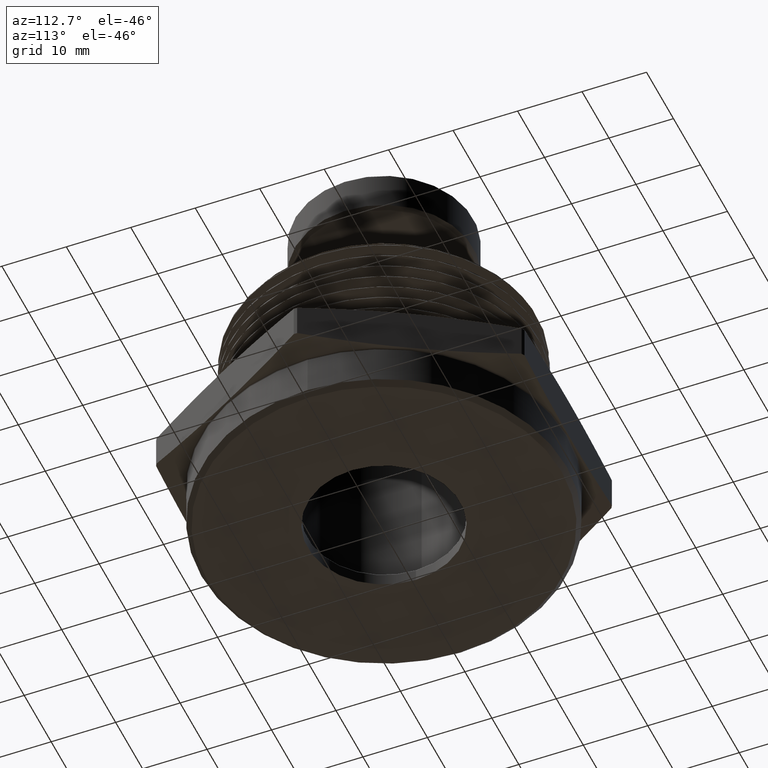
[diagram: clean part render]
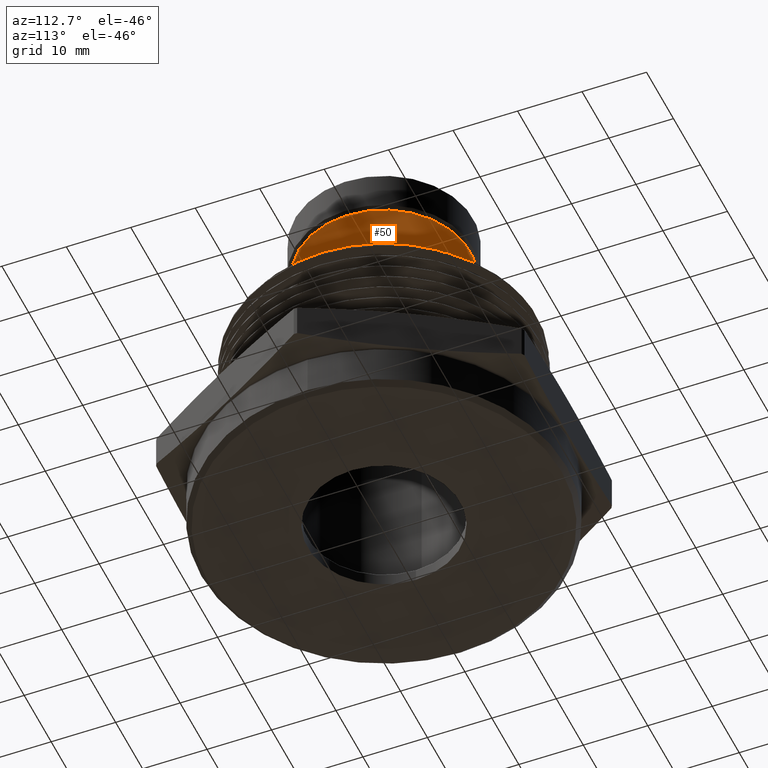
[diagram: same view with one face highlighted and labeled with its STEP entity id]
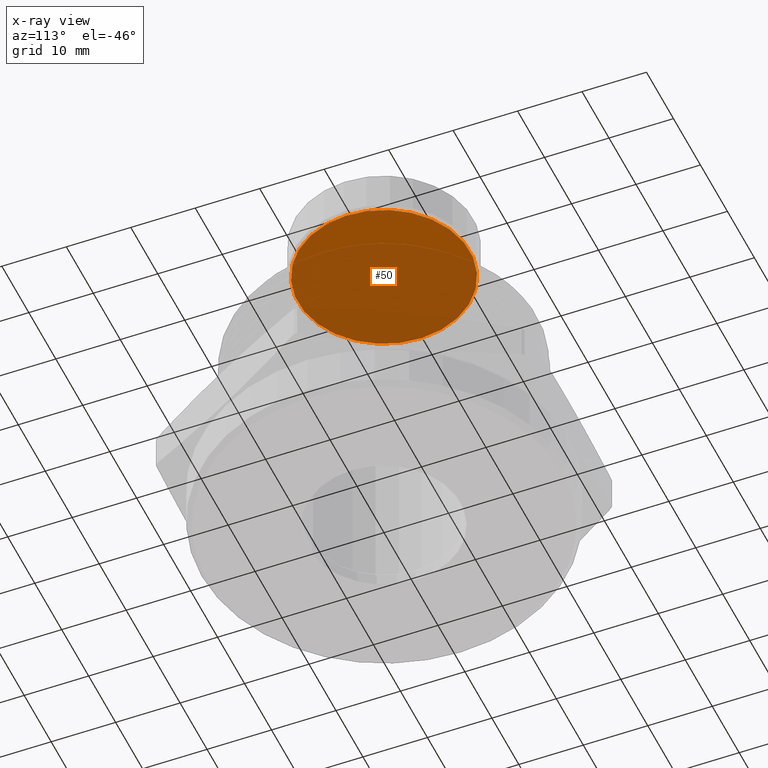
[diagram: x-ray of the same camera — body ghosted, the highlighted face saturated]
A machine part, auxiliary view. The second image highlights one B-rep face of the part: STEP entity #50.
The next image is the same camera in x-ray: the body ghosted, the highlighted face saturated — about 75% of this face is hidden behind the body in this view.
In plain terms, the highlighted planar face has unit normal (0, 0, 1).
Its self-contained STEP definition (entity closure, byte-faithful):
#50 = ADVANCED_FACE ( 'NONE', ( #7749 ), #6908, .F. ) ;
#69 = AXIS2_PLACEMENT_3D ( 'NONE', #6910, #6915, #6916 ) ;
#117 = AXIS2_PLACEMENT_3D ( 'NONE', #877, #878, #879 ) ;
#351 = CARTESIAN_POINT ( 'NONE',  ( 0.6416800539378871800, -0.1164497935006343900, 0.0000000000000000000 ) ) ;
#356 = CARTESIAN_POINT ( 'NONE',  ( -0.4083199460621152500, -0.1164497935006343200, 0.0000000000000000000 ) ) ;
#877 = CARTESIAN_POINT ( 'NONE',  ( 0.1166800539378849700, -0.1164497935006343900, 0.0000000000000000000 ) ) ;
#878 = DIRECTION ( 'NONE',  ( -0.0000000000000000000, -0.0000000000000000000, -1.000000000000000000 ) ) ;
#879 = DIRECTION ( 'NONE',  ( 1.000000000000000000, 0.0000000000000000000, 0.0000000000000000000 ) ) ;
#1347 = CARTESIAN_POINT ( 'NONE',  ( 0.1166800539378849700, -0.1164497935006343900, 0.0000000000000000000 ) ) ;
#1348 = DIRECTION ( 'NONE',  ( -0.0000000000000000000, -0.0000000000000000000, -1.000000000000000000 ) ) ;
#1349 = DIRECTION ( 'NONE',  ( 1.000000000000000000, 0.0000000000000000000, 0.0000000000000000000 ) ) ;
#1554 = EDGE_LOOP ( 'NONE', ( #2268, #2269 ) ) ;
#2149 = VERTEX_POINT ( 'NONE', #351 ) ;
#2155 = VERTEX_POINT ( 'NONE', #356 ) ;
#2268 = ORIENTED_EDGE ( 'NONE', *, *, #5796, .T. ) ;
#2269 = ORIENTED_EDGE ( 'NONE', *, *, #6171, .T. ) ;
#3009 = AXIS2_PLACEMENT_3D ( 'NONE', #1347, #1348, #1349 ) ;
#5796 = EDGE_CURVE ( 'NONE', #2149, #2155, #7600, .T. ) ;
#6171 = EDGE_CURVE ( 'NONE', #2155, #2149, #7641, .T. ) ;
#6908 = PLANE ( 'NONE',  #69 ) ;
#6910 = CARTESIAN_POINT ( 'NONE',  ( 0.0000000000000000000, 0.0000000000000000000, 0.0000000000000000000 ) ) ;
#6915 = DIRECTION ( 'NONE',  ( 0.0000000000000000000, 0.0000000000000000000, 1.000000000000000000 ) ) ;
#6916 = DIRECTION ( 'NONE',  ( 1.000000000000000000, 0.0000000000000000000, 0.0000000000000000000 ) ) ;
#7600 = CIRCLE ( 'NONE', #117, 0.5250000000000022400 ) ;
#7641 = CIRCLE ( 'NONE', #3009, 0.5250000000000022400 ) ;
#7749 = FACE_OUTER_BOUND ( 'NONE', #1554, .T. ) ;